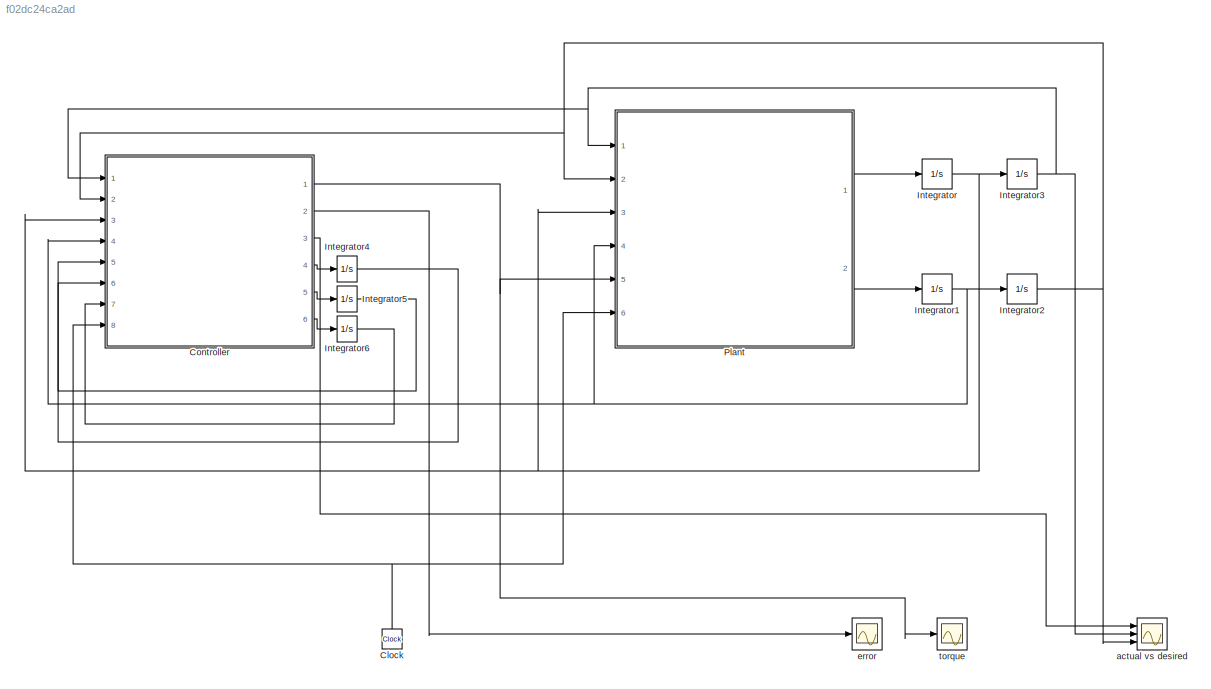
MODEL slx_f02dc24ca2ad
KIND model
CONFIG AbsTol = auto
CONFIG EnableMultiTasking = off
CONFIG FixedStep = auto
CONFIG MaxStep = auto
CONFIG MinStep = auto
CONFIG RelTol = 1e-3
CONFIG SampleTimeConstraint = Unconstrained
CONFIG SolverName = VariableStepAuto
CONFIG StartTime = 0.0
CONFIG StopTime = 10.0
BLOCK [Clock] Clock
  NameLocation = left
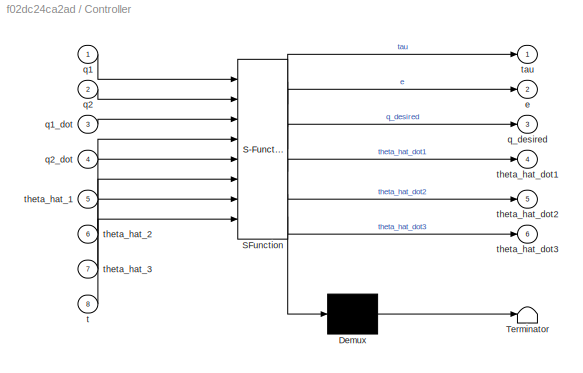
BLOCK [SubSystem] Controller
  ErrorFcn = Stateflow.Translate.translate
  PermitHierarchicalResolution = ExplicitOnly
  Ports = [8, 6]
  RequestExecContextInheritance = off
  SFBlockType = MATLAB Function
  TreatAsAtomicUnit = on
BLOCK [Demux] Controller/ Demux 
  Outputs = 1
  Ports = [1, 1]
BLOCK [S-Function] Controller/ SFunction 
  EnableBusSupport = on
  FunctionName = sf_sfun
  PortCounts = [8 7]
  Ports = [8, 7]
  SFcnIsStateOwnerBlock = off
  SFunctionDeploymentMode = off
  Tag = Stateflow S-Function 1
BLOCK [Terminator] Controller/ Terminator 
BLOCK [Outport] Controller/e
  Port = 2
BLOCK [Inport] Controller/q1
BLOCK [Inport] Controller/q1_dot
  Port = 3
BLOCK [Inport] Controller/q2
  Port = 2
BLOCK [Inport] Controller/q2_dot
  Port = 4
BLOCK [Outport] Controller/q_desired
  Port = 3
BLOCK [Inport] Controller/t
  Port = 8
BLOCK [Outport] Controller/tau
BLOCK [Inport] Controller/theta_hat_1
  Port = 5
BLOCK [Inport] Controller/theta_hat_2
  Port = 6
BLOCK [Inport] Controller/theta_hat_3
  Port = 7
BLOCK [Outport] Controller/theta_hat_dot1
  Port = 4
BLOCK [Outport] Controller/theta_hat_dot2
  Port = 5
BLOCK [Outport] Controller/theta_hat_dot3
  Port = 6
BLOCK [Integrator] Integrator
  Ports = [1, 1]
BLOCK [Integrator] Integrator1
  Ports = [1, 1]
BLOCK [Integrator] Integrator2
  Ports = [1, 1]
BLOCK [Integrator] Integrator3
  Ports = [1, 1]
BLOCK [Integrator] Integrator4
  Ports = [1, 1]
BLOCK [Integrator] Integrator5
  Ports = [1, 1]
BLOCK [Integrator] Integrator6
  Ports = [1, 1]
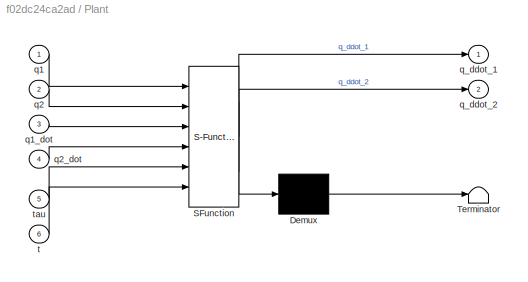
BLOCK [SubSystem] Plant
  ErrorFcn = Stateflow.Translate.translate
  PermitHierarchicalResolution = ExplicitOnly
  Ports = [6, 2]
  RequestExecContextInheritance = off
  SFBlockType = MATLAB Function
  TreatAsAtomicUnit = on
BLOCK [Demux] Plant/ Demux 
  Outputs = 1
  Ports = [1, 1]
BLOCK [S-Function] Plant/ SFunction 
  EnableBusSupport = on
  FunctionName = sf_sfun
  PortCounts = [6 3]
  Ports = [6, 3]
  SFcnIsStateOwnerBlock = off
  SFunctionDeploymentMode = off
  Tag = Stateflow S-Function 2
BLOCK [Terminator] Plant/ Terminator 
BLOCK [Inport] Plant/q1
BLOCK [Inport] Plant/q1_dot
  Port = 3
BLOCK [Inport] Plant/q2
  Port = 2
BLOCK [Inport] Plant/q2_dot
  Port = 4
BLOCK [Outport] Plant/q_ddot_1
BLOCK [Outport] Plant/q_ddot_2
  Port = 2
BLOCK [Inport] Plant/t
  Port = 6
BLOCK [Inport] Plant/tau
  Port = 5
BLOCK [Scope] actual vs desired
  Floating = off
  NumInputPorts = 3
  Ports = [3]
  ScopeSpecificationString = Simulink.scopes.TimeScopeBlockCfg('CurrentConfiguration', extmgr.ConfigurationSet(extmgr.Configuration('Core','General UI',true),extmgr.Configuration('Core','Source UI',true),extmgr.Configuration('Sources','WiredSimulink',true,'DataLoggingVariableName','ScopeData2'),extmgr.Configuration('Visuals','Time Domain',true,'SerializedDisplays',{struct('MinYLimReal','-7.52595','MaxYLimReal','7.51383','YLab...<+1461ch>
BLOCK [Scope] error
  Floating = off
  NumInputPorts = 1
  Ports = [1]
  ScopeSpecificationString = Simulink.scopes.TimeScopeBlockCfg('CurrentConfiguration', extmgr.ConfigurationSet(extmgr.Configuration('Core','General UI',true),extmgr.Configuration('Core','Source UI',true),extmgr.Configuration('Sources','WiredSimulink',true),extmgr.Configuration('Visuals','Time Domain',true,'SerializedDisplays',{struct('MinYLimReal','-0.93709','MaxYLimReal','1.19805','YLabelReal','','MinYLimMag','0.00000','MaxY...<+1428ch>
BLOCK [Scope] torque
  Floating = off
  NumInputPorts = 1
  Ports = [1]
  ScopeSpecificationString = Simulink.scopes.TimeScopeBlockCfg('CurrentConfiguration', extmgr.ConfigurationSet(extmgr.Configuration('Core','General UI',true),extmgr.Configuration('Core','Source UI',true),extmgr.Configuration('Sources','WiredSimulink',true,'DataLoggingVariableName','ScopeData1'),extmgr.Configuration('Visuals','Time Domain',true,'SerializedDisplays',{struct('MinYLimReal','-312143.64364','MaxYLimReal','260791.43...<+1461ch>
NET Clock:1 -> Controller:8, Plant:6
NET Controller:1 -> Plant:5, torque:1
LINE Controller:2 -> error:1
LINE Controller:3 -> actual vs desired:1
LINE Controller:4 -> Integrator4:1
LINE Controller:5 -> Integrator5:1
LINE Controller:6 -> Integrator6:1
NET Integrator1:1 -> Controller:4, Integrator2:1, Plant:4
NET Integrator2:1 -> Controller:2, Plant:2, actual vs desired:3
NET Integrator3:1 -> Controller:1, Plant:1, actual vs desired:2
LINE Integrator4:1 -> Controller:5
LINE Integrator5:1 -> Controller:6
LINE Integrator6:1 -> Controller:7
NET Integrator:1 -> Controller:3, Integrator3:1, Plant:3
LINE Plant:1 -> Integrator:1
LINE Plant:2 -> Integrator1:1
note: NET lines group one-source signal fan-out (src -> all destinations, sorted); 1:1 wires keep LINE
CHART Controller states=1 transitions=1
  STATE_LABEL 'eML_blk_kernel()'
  STATE_LABEL 'SCRIPT:\nfunction [tau,e,q_desired,theta_hat_dot1,theta_hat_dot2,theta_hat_dot3] = fcn(q1,q2,q1_dot,q2_dot,theta_hat_1,theta_hat_2,theta_hat_3,t)\n\n% initialzing given constants p1,p2,p3,fd1,fd2\n% p1,p2,p3 have units Kg.m^2\n% fd1 and fd2 have units Nm.sec\n\np1 = 3.473;\np2 = 0.196;\np3 = 0.242;\n\nfd1 = 5.3;\nfd2 = 1.1;\n\nalpha = 150;\nk = 85;\ngamma = 2;\n\nF = [fd1 0 ; 0 fd2];\n% Compute M , Vm\nM = [p1+2*p3*c...<+896ch>'
CHART Plant states=1 transitions=1
  STATE_LABEL 'eML_blk_kernel()'
  STATE_LABEL 'SCRIPT:\nfunction [q_ddot_1,q_ddot_2]= fcn(q1,q2,q1_dot,q2_dot,tau,t)\n\n% initialzing given constants p1,p2,p3,fd1,fd2\n% p1,p2,p3 have units Kg.m^2\n% fd1 and fd2 have units Nm.sec\n\np1 = 3.473;\np2 = 0.196;\np3 = 0.242;\n\nfd1 = 5.3;\nfd2 = 1.1;\n\n% Compute M , Vm\nM = [p1+2*p3*cos(q2) p2+p3*cos(q2); p2+p3*cos(q2) p2];\nVm = [-p3*sin(q2)*q2_dot -p3*sin(q2)*(q2_dot+q1_dot); p3*sin(q2)*q1_dot 0];\n\n% Initialize...<+297ch>'
CHART  states=0 transitions=0
CHART  states=0 transitions=0
